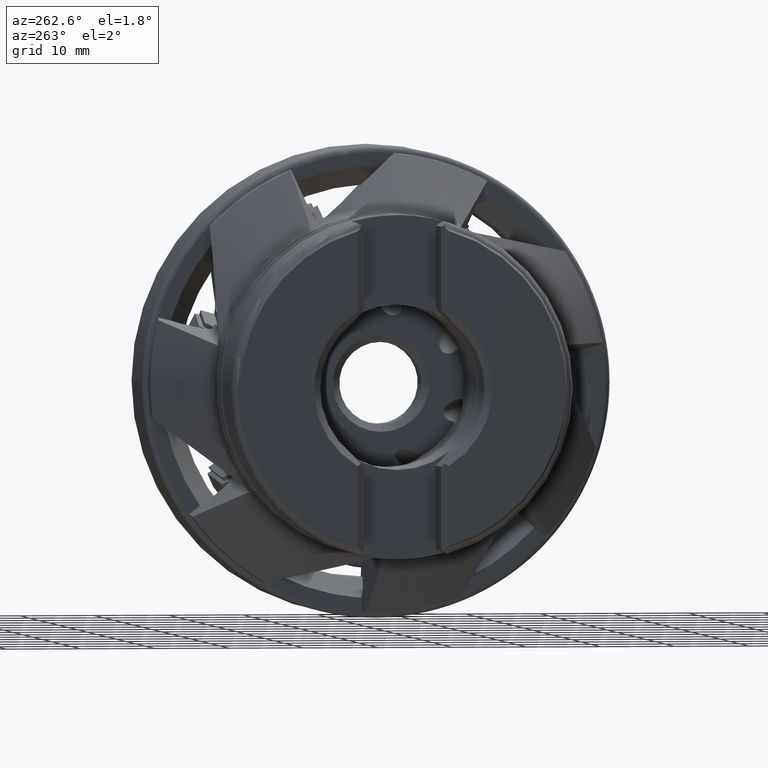
[diagram: clean part render]
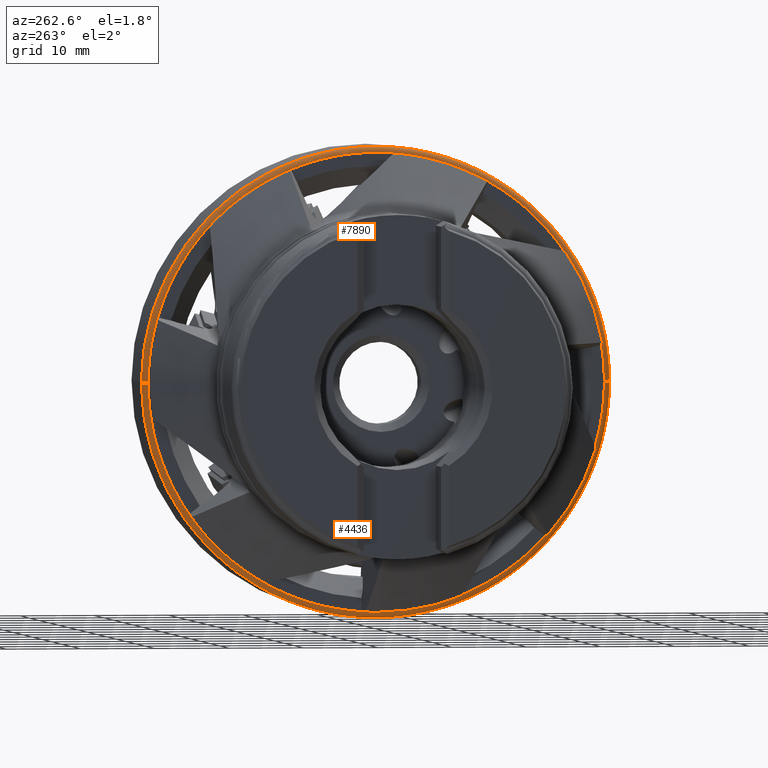
[diagram: same view with one multi-face feature highlighted, each face labeled with its STEP entity id]
A machine part, auxiliary view. The highlighted faces form ONE feature: a constant-radius fillet chain: 2 tangent blend faces with common blend radius 0.8 mm. The faces share edges in the B-rep.
Their STEP definitions:
[1] entity #7890 (Torus):
#671 = CARTESIAN_POINT ( 'NONE',  ( -11.40000000000000200, -30.70000000000000300, 3.808651545348268500E-015 ) ) ;
#788 = CARTESIAN_POINT ( 'NONE',  ( -10.60000000000000700, -31.50000000000000000, 3.857637417314161900E-015 ) ) ;
#807 = CARTESIAN_POINT ( 'NONE',  ( -10.60000000000001400, 31.50000000000000000, 0.0000000000000000000 ) ) ;
#844 = CARTESIAN_POINT ( 'NONE',  ( -11.40000000000000900, 30.69999999999999600, 0.0000000000000000000 ) ) ;
#2226 = FACE_OUTER_BOUND ( 'NONE', #7182, .T. ) ;
#2230 = TOROIDAL_SURFACE ( 'NONE', #10732, 30.69999999999999900, 0.7999999999999986000 ) ;
#3569 = CARTESIAN_POINT ( 'NONE',  ( -10.60000000000000900, -3.469446951953614200E-015, 0.0000000000000000000 ) ) ;
#3577 = DIRECTION ( 'NONE',  ( 1.000000000000000000, 1.224931307836576000E-016, -0.0000000000000000000 ) ) ;
#3578 = DIRECTION ( 'NONE',  ( -1.224931307836576000E-016, 1.000000000000000000, 0.0000000000000000000 ) ) ;
#4525 = EDGE_CURVE ( 'NONE', #6852, #6815, #9994, .T. ) ;
#4528 = EDGE_CURVE ( 'NONE', #6689, #6796, #9997, .T. ) ;
#4534 = EDGE_CURVE ( 'NONE', #6852, #6689, #9998, .T. ) ;
#4539 = EDGE_CURVE ( 'NONE', #6815, #6796, #9999, .T. ) ;
#4743 = ORIENTED_EDGE ( 'NONE', *, *, #4525, .F. ) ;
#4754 = ORIENTED_EDGE ( 'NONE', *, *, #4534, .T. ) ;
#4781 = ORIENTED_EDGE ( 'NONE', *, *, #4528, .T. ) ;
#4818 = ORIENTED_EDGE ( 'NONE', *, *, #4539, .F. ) ;
#6689 = VERTEX_POINT ( 'NONE', #671 ) ;
#6796 = VERTEX_POINT ( 'NONE', #788 ) ;
#6815 = VERTEX_POINT ( 'NONE', #807 ) ;
#6852 = VERTEX_POINT ( 'NONE', #844 ) ;
#7182 = EDGE_LOOP ( 'NONE', ( #4754, #4781, #4818, #4743 ) ) ;
#7890 = ADVANCED_FACE ( 'NONE', ( #2226 ), #2230, .T. ) ;
#8306 = AXIS2_PLACEMENT_3D ( 'NONE', #9799, #9800, #9801 ) ;
#8307 = AXIS2_PLACEMENT_3D ( 'NONE', #9809, #9810, #9811 ) ;
#8308 = AXIS2_PLACEMENT_3D ( 'NONE', #9844, #9845, #9846 ) ;
#8309 = AXIS2_PLACEMENT_3D ( 'NONE', #9856, #9857, #9858 ) ;
#9799 = CARTESIAN_POINT ( 'NONE',  ( -10.60000000000001200, 30.69999999999999600, 0.0000000000000000000 ) ) ;
#9800 = DIRECTION ( 'NONE',  ( -0.0000000000000000000, 0.0000000000000000000, -1.000000000000000000 ) ) ;
#9801 = DIRECTION ( 'NONE',  ( -1.000000000000000000, 0.0000000000000000000, 0.0000000000000000000 ) ) ;
#9809 = CARTESIAN_POINT ( 'NONE',  ( -10.60000000000000500, -30.70000000000000300, 3.759665673382374300E-015 ) ) ;
#9810 = DIRECTION ( 'NONE',  ( -1.500108205317444100E-032, 1.224646799147353200E-016, 1.000000000000000000 ) ) ;
#9811 = DIRECTION ( 'NONE',  ( 0.0000000000000000000, -1.000000000000000000, 1.224646799147348800E-016 ) ) ;
#9844 = CARTESIAN_POINT ( 'NONE',  ( -11.40000000000000600, -2.580870741378527300E-015, 0.0000000000000000000 ) ) ;
#9845 = DIRECTION ( 'NONE',  ( 1.000000000000000000, 1.224931307836576000E-016, -0.0000000000000000000 ) ) ;
#9846 = DIRECTION ( 'NONE',  ( -1.130113013665672400E-016, 1.000000000000000000, 0.0000000000000000000 ) ) ;
#9856 = CARTESIAN_POINT ( 'NONE',  ( -10.60000000000001000, -2.482876236751601500E-015, 0.0000000000000000000 ) ) ;
#9857 = DIRECTION ( 'NONE',  ( 1.000000000000000000, 1.224931307836576000E-016, -0.0000000000000000000 ) ) ;
#9858 = DIRECTION ( 'NONE',  ( -1.101411730778925200E-016, 1.000000000000000000, 0.0000000000000000000 ) ) ;
#9994 = CIRCLE ( 'NONE', #8306, 0.7999999999999986000 ) ;
#9997 = CIRCLE ( 'NONE', #8307, 0.7999999999999986000 ) ;
#9998 = CIRCLE ( 'NONE', #8308, 30.69999999999999900 ) ;
#9999 = CIRCLE ( 'NONE', #8309, 31.50000000000000000 ) ;
#10732 = AXIS2_PLACEMENT_3D ( 'NONE', #3569, #3577, #3578 ) ;
[2] entity #4436 (Torus):
#85 = EDGE_LOOP ( 'NONE', ( #5735, #5736, #5737, #5738 ) ) ;
#671 = CARTESIAN_POINT ( 'NONE',  ( -11.40000000000000200, -30.70000000000000300, 3.808651545348268500E-015 ) ) ;
#788 = CARTESIAN_POINT ( 'NONE',  ( -10.60000000000000700, -31.50000000000000000, 3.857637417314161900E-015 ) ) ;
#807 = CARTESIAN_POINT ( 'NONE',  ( -10.60000000000001400, 31.50000000000000000, 0.0000000000000000000 ) ) ;
#844 = CARTESIAN_POINT ( 'NONE',  ( -11.40000000000000900, 30.69999999999999600, 0.0000000000000000000 ) ) ;
#1945 = CIRCLE ( 'NONE', #10594, 30.69999999999999900 ) ;
#1950 = CIRCLE ( 'NONE', #10599, 31.50000000000000000 ) ;
#2499 = CARTESIAN_POINT ( 'NONE',  ( -11.40000000000000600, -2.580870741378527300E-015, 0.0000000000000000000 ) ) ;
#2500 = DIRECTION ( 'NONE',  ( 1.000000000000000000, 1.224931307836576000E-016, -0.0000000000000000000 ) ) ;
#2501 = DIRECTION ( 'NONE',  ( -1.130113013665672400E-016, 1.000000000000000000, 0.0000000000000000000 ) ) ;
#2514 = CARTESIAN_POINT ( 'NONE',  ( -10.60000000000001000, -2.482876236751601500E-015, 0.0000000000000000000 ) ) ;
#2515 = DIRECTION ( 'NONE',  ( 1.000000000000000000, 1.224931307836576000E-016, -0.0000000000000000000 ) ) ;
#2516 = DIRECTION ( 'NONE',  ( -1.101411730778925200E-016, 1.000000000000000000, 0.0000000000000000000 ) ) ;
#4436 = ADVANCED_FACE ( 'NONE', ( #8792 ), #8794, .T. ) ;
#4525 = EDGE_CURVE ( 'NONE', #6852, #6815, #9994, .T. ) ;
#4528 = EDGE_CURVE ( 'NONE', #6689, #6796, #9997, .T. ) ;
#5735 = ORIENTED_EDGE ( 'NONE', *, *, #4528, .F. ) ;
#5736 = ORIENTED_EDGE ( 'NONE', *, *, #7604, .T. ) ;
#5737 = ORIENTED_EDGE ( 'NONE', *, *, #4525, .T. ) ;
#5738 = ORIENTED_EDGE ( 'NONE', *, *, #7609, .F. ) ;
#6689 = VERTEX_POINT ( 'NONE', #671 ) ;
#6796 = VERTEX_POINT ( 'NONE', #788 ) ;
#6815 = VERTEX_POINT ( 'NONE', #807 ) ;
#6852 = VERTEX_POINT ( 'NONE', #844 ) ;
#7604 = EDGE_CURVE ( 'NONE', #6689, #6852, #1945, .T. ) ;
#7609 = EDGE_CURVE ( 'NONE', #6796, #6815, #1950, .T. ) ;
#8224 = AXIS2_PLACEMENT_3D ( 'NONE', #9336, #9344, #9345 ) ;
#8306 = AXIS2_PLACEMENT_3D ( 'NONE', #9799, #9800, #9801 ) ;
#8307 = AXIS2_PLACEMENT_3D ( 'NONE', #9809, #9810, #9811 ) ;
#8792 = FACE_OUTER_BOUND ( 'NONE', #85, .T. ) ;
#8794 = TOROIDAL_SURFACE ( 'NONE', #8224, 30.69999999999999900, 0.7999999999999986000 ) ;
#9336 = CARTESIAN_POINT ( 'NONE',  ( -10.60000000000000900, -3.469446951953614200E-015, 0.0000000000000000000 ) ) ;
#9344 = DIRECTION ( 'NONE',  ( 1.000000000000000000, 1.224931307836576000E-016, -0.0000000000000000000 ) ) ;
#9345 = DIRECTION ( 'NONE',  ( -1.224931307836576000E-016, 1.000000000000000000, 0.0000000000000000000 ) ) ;
#9799 = CARTESIAN_POINT ( 'NONE',  ( -10.60000000000001200, 30.69999999999999600, 0.0000000000000000000 ) ) ;
#9800 = DIRECTION ( 'NONE',  ( -0.0000000000000000000, 0.0000000000000000000, -1.000000000000000000 ) ) ;
#9801 = DIRECTION ( 'NONE',  ( -1.000000000000000000, 0.0000000000000000000, 0.0000000000000000000 ) ) ;
#9809 = CARTESIAN_POINT ( 'NONE',  ( -10.60000000000000500, -30.70000000000000300, 3.759665673382374300E-015 ) ) ;
#9810 = DIRECTION ( 'NONE',  ( -1.500108205317444100E-032, 1.224646799147353200E-016, 1.000000000000000000 ) ) ;
#9811 = DIRECTION ( 'NONE',  ( 0.0000000000000000000, -1.000000000000000000, 1.224646799147348800E-016 ) ) ;
#9994 = CIRCLE ( 'NONE', #8306, 0.7999999999999986000 ) ;
#9997 = CIRCLE ( 'NONE', #8307, 0.7999999999999986000 ) ;
#10594 = AXIS2_PLACEMENT_3D ( 'NONE', #2499, #2500, #2501 ) ;
#10599 = AXIS2_PLACEMENT_3D ( 'NONE', #2514, #2515, #2516 ) ;